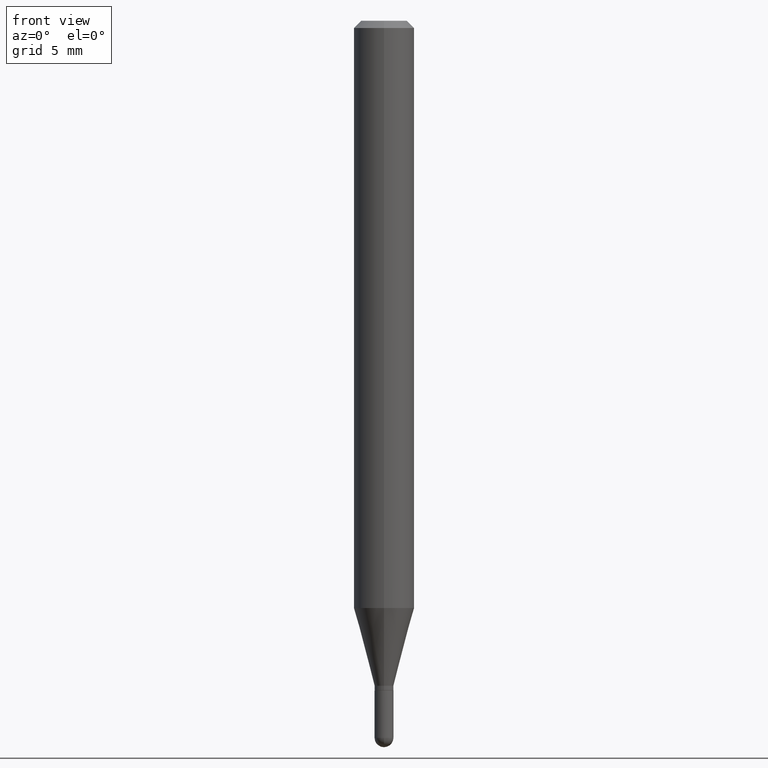
[diagram: clean part render]
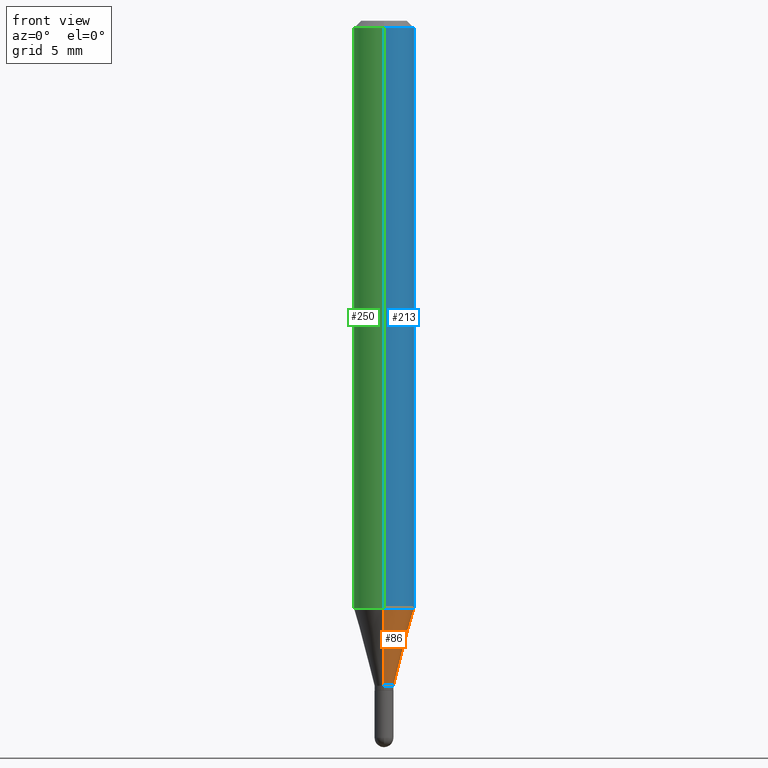
[diagram: same view with three faces highlighted in distinct colors, each labeled with its STEP entity id]
A machine part, front view with three faces highlighted in distinct colors.
Their STEP definitions:

[orange] entity #86 — the highlighted conical surface has half-angle 15 deg.
#3 = DIRECTION ( 'NONE',  ( 1.839019923739599526E-15, 0.2588190451025248473, 0.9659258262890670910 ) ) ;
#6 = AXIS2_PLACEMENT_3D ( 'NONE', #460, #298, #258 ) ;
#10 = EDGE_CURVE ( 'NONE', #42, #93, #144, .T. ) ;
#23 = CARTESIAN_POINT ( 'NONE',  ( -1.361677722148480659E-16, -0.01950000000000471495, -1.372999999999999998 ) ) ;
#42 = VERTEX_POINT ( 'NONE', #428 ) ;
#47 = AXIS2_PLACEMENT_3D ( 'NONE', #102, #222, #216 ) ;
#66 = CARTESIAN_POINT ( 'NONE',  ( 4.440892098500920012E-16, 0.06249999999999574646, -1.212521815274538728 ) ) ;
#78 = EDGE_CURVE ( 'NONE', #93, #196, #496, .T. ) ;
#84 = LINE ( 'NONE', #159, #247 ) ;
#85 = VERTEX_POINT ( 'NONE', #294 ) ;
#86 = ADVANCED_FACE ( 'NONE', ( #107 ), #246, .T. ) ;
#93 = VERTEX_POINT ( 'NONE', #461 ) ;
#102 = CARTESIAN_POINT ( 'NONE',  ( 3.357631593102754865E-29, -4.793799693459790864E-15, -1.372999999999999998 ) ) ;
#107 = FACE_OUTER_BOUND ( 'NONE', #370, .T. ) ;
#144 = LINE ( 'NONE', #23, #454 ) ;
#159 = CARTESIAN_POINT ( 'NONE',  ( 1.385558334732525203E-16, 0.01949999999999512887, -1.372999999999999998 ) ) ;
#179 = AXIS2_PLACEMENT_3D ( 'NONE', #463, #352, #385 ) ;
#192 = CIRCLE ( 'NONE', #179, 0.01949999999999992017 ) ;
#196 = VERTEX_POINT ( 'NONE', #66 ) ;
#216 = DIRECTION ( 'NONE',  ( -6.982962677686266711E-15, -1.000000000000000000, 0.000000000000000000 ) ) ;
#222 = DIRECTION ( 'NONE',  ( -2.445470934524949177E-29, 3.491478290939396470E-15, 1.000000000000000000 ) ) ;
#238 = ORIENTED_EDGE ( 'NONE', *, *, #10, .F. ) ;
#246 = CONICAL_SURFACE ( 'NONE', #47, 0.01949999999999992017, 0.2617993877991501850 ) ;
#247 = VECTOR ( 'NONE', #3, 39.37007874015748143 ) ;
#258 = DIRECTION ( 'NONE',  ( -6.982962677686265922E-15, -1.000000000000000000, 4.370956789862821150E-15 ) ) ;
#294 = CARTESIAN_POINT ( 'NONE',  ( 2.913225216616725443E-16, 0.01949999999999512887, -1.372999999999999998 ) ) ;
#298 = DIRECTION ( 'NONE',  ( -2.445470934524949177E-29, 3.491478290939396470E-15, 1.000000000000000000 ) ) ;
#323 = ORIENTED_EDGE ( 'NONE', *, *, #78, .F. ) ;
#352 = DIRECTION ( 'NONE',  ( -2.445470934524949177E-29, 3.491478290939396470E-15, 1.000000000000000000 ) ) ;
#370 = EDGE_LOOP ( 'NONE', ( #457, #392, #323, #238 ) ) ;
#385 = DIRECTION ( 'NONE',  ( -6.982962677686266711E-15, -1.000000000000000000, 0.000000000000000000 ) ) ;
#392 = ORIENTED_EDGE ( 'NONE', *, *, #439, .T. ) ;
#425 = DIRECTION ( 'NONE',  ( -1.807323732225329350E-15, -0.2588190451025180194, 0.9659258262890689783 ) ) ;
#428 = CARTESIAN_POINT ( 'NONE',  ( -1.361677722148480659E-16, -0.01950000000000471495, -1.372999999999999998 ) ) ;
#439 = EDGE_CURVE ( 'NONE', #85, #196, #84, .T. ) ;
#454 = VECTOR ( 'NONE', #425, 39.37007874015749564 ) ;
#457 = ORIENTED_EDGE ( 'NONE', *, *, #509, .T. ) ;
#460 = CARTESIAN_POINT ( 'NONE',  ( 2.965186856731312927E-29, -4.233493595321480770E-15, -1.212521815274538506 ) ) ;
#461 = CARTESIAN_POINT ( 'NONE',  ( -4.364351673553621364E-16, -0.06250000000000424660, -1.212521815274538284 ) ) ;
#463 = CARTESIAN_POINT ( 'NONE',  ( 3.357631593102754865E-29, -4.793799693459790864E-15, -1.372999999999999998 ) ) ;
#496 = CIRCLE ( 'NONE', #6, 0.06250000000000000000 ) ;
#509 = EDGE_CURVE ( 'NONE', #42, #85, #192, .T. ) ;

[blue] entity #213 — the highlighted cylindrical surface (edge-blend (fillet) strip) has radius 1.5875 mm, axis along (-0, 0, 1).
#6 = AXIS2_PLACEMENT_3D ( 'NONE', #460, #298, #258 ) ;
#57 = CIRCLE ( 'NONE', #303, 0.06250000000000000000 ) ;
#66 = CARTESIAN_POINT ( 'NONE',  ( 4.440892098500920012E-16, 0.06249999999999574646, -1.212521815274538728 ) ) ;
#78 = EDGE_CURVE ( 'NONE', #93, #196, #496, .T. ) ;
#79 = CARTESIAN_POINT ( 'NONE',  ( -4.364351673553912750E-16, -0.06250000000000005551, -0.01499999999999979128 ) ) ;
#81 = VECTOR ( 'NONE', #406, 39.37007874015748143 ) ;
#83 = ORIENTED_EDGE ( 'NONE', *, *, #190, .T. ) ;
#93 = VERTEX_POINT ( 'NONE', #461 ) ;
#154 = DIRECTION ( 'NONE',  ( -6.982962677686265922E-15, -1.000000000000000000, 3.483106191921935554E-15 ) ) ;
#156 = LINE ( 'NONE', #405, #486 ) ;
#161 = CARTESIAN_POINT ( 'NONE',  ( 4.440892098500923957E-16, 0.06249999999999995143, -0.01500000000000022669 ) ) ;
#183 = CARTESIAN_POINT ( 'NONE',  ( 3.668206401787426008E-31, -5.237217436409098206E-17, -0.01500000000000000812 ) ) ;
#190 = EDGE_CURVE ( 'NONE', #196, #483, #156, .T. ) ;
#196 = VERTEX_POINT ( 'NONE', #66 ) ;
#204 = EDGE_LOOP ( 'NONE', ( #373, #83, #410, #240 ) ) ;
#213 = ADVANCED_FACE ( 'NONE', ( #308 ), #311, .T. ) ;
#240 = ORIENTED_EDGE ( 'NONE', *, *, #397, .F. ) ;
#258 = DIRECTION ( 'NONE',  ( -6.982962677686265922E-15, -1.000000000000000000, 4.370956789862821150E-15 ) ) ;
#266 = EDGE_CURVE ( 'NONE', #491, #483, #57, .T. ) ;
#273 = DIRECTION ( 'NONE',  ( -2.445470934524948897E-29, 3.491478290939396076E-15, 1.000000000000000000 ) ) ;
#285 = CARTESIAN_POINT ( 'NONE',  ( -4.364351673553916201E-16, -0.06250000000000000000, 2.182173931837122794E-16 ) ) ;
#298 = DIRECTION ( 'NONE',  ( -2.445470934524949177E-29, 3.491478290939396470E-15, 1.000000000000000000 ) ) ;
#303 = AXIS2_PLACEMENT_3D ( 'NONE', #183, #304, #154 ) ;
#304 = DIRECTION ( 'NONE',  ( -2.445470934524949177E-29, 3.491478290939396470E-15, 1.000000000000000000 ) ) ;
#308 = FACE_OUTER_BOUND ( 'NONE', #204, .T. ) ;
#311 = CYLINDRICAL_SURFACE ( 'NONE', #426, 0.06250000000000000000 ) ;
#350 = DIRECTION ( 'NONE',  ( -6.982962677686265922E-15, -1.000000000000000000, 3.491478290939396470E-15 ) ) ;
#373 = ORIENTED_EDGE ( 'NONE', *, *, #78, .T. ) ;
#397 = EDGE_CURVE ( 'NONE', #93, #491, #476, .T. ) ;
#405 = CARTESIAN_POINT ( 'NONE',  ( 4.440892098500625669E-16, 0.06250000000000000000, -2.182173931837122794E-16 ) ) ;
#406 = DIRECTION ( 'NONE',  ( -2.445470934524948897E-29, 3.491478290939396076E-15, 1.000000000000000000 ) ) ;
#410 = ORIENTED_EDGE ( 'NONE', *, *, #266, .F. ) ;
#426 = AXIS2_PLACEMENT_3D ( 'NONE', #470, #474, #350 ) ;
#460 = CARTESIAN_POINT ( 'NONE',  ( 2.965186856731312927E-29, -4.233493595321480770E-15, -1.212521815274538506 ) ) ;
#461 = CARTESIAN_POINT ( 'NONE',  ( -4.364351673553621364E-16, -0.06250000000000424660, -1.212521815274538284 ) ) ;
#470 = CARTESIAN_POINT ( 'NONE',  ( 0.000000000000000000, 0.000000000000000000, 0.000000000000000000 ) ) ;
#474 = DIRECTION ( 'NONE',  ( -2.445470934524949177E-29, 3.491478290939396470E-15, 1.000000000000000000 ) ) ;
#476 = LINE ( 'NONE', #285, #81 ) ;
#483 = VERTEX_POINT ( 'NONE', #161 ) ;
#486 = VECTOR ( 'NONE', #273, 39.37007874015748143 ) ;
#491 = VERTEX_POINT ( 'NONE', #79 ) ;
#496 = CIRCLE ( 'NONE', #6, 0.06250000000000000000 ) ;

[green] entity #250 — the highlighted cylindrical surface (edge-blend (fillet) strip) has radius 1.5875 mm, axis along (-0, 0, 1).
#2 = ORIENTED_EDGE ( 'NONE', *, *, #397, .T. ) ;
#30 = CARTESIAN_POINT ( 'NONE',  ( 3.668206401787426008E-31, -5.237217436409098206E-17, -0.01500000000000000812 ) ) ;
#34 = CARTESIAN_POINT ( 'NONE',  ( 0.000000000000000000, 0.000000000000000000, 0.000000000000000000 ) ) ;
#36 = EDGE_CURVE ( 'NONE', #483, #491, #302, .T. ) ;
#66 = CARTESIAN_POINT ( 'NONE',  ( 4.440892098500920012E-16, 0.06249999999999574646, -1.212521815274538728 ) ) ;
#79 = CARTESIAN_POINT ( 'NONE',  ( -4.364351673553912750E-16, -0.06250000000000005551, -0.01499999999999979128 ) ) ;
#81 = VECTOR ( 'NONE', #406, 39.37007874015748143 ) ;
#93 = VERTEX_POINT ( 'NONE', #461 ) ;
#97 = DIRECTION ( 'NONE',  ( -2.445470934524949177E-29, 3.491478290939396470E-15, 1.000000000000000000 ) ) ;
#99 = DIRECTION ( 'NONE',  ( -2.445470934524949177E-29, 3.491478290939396470E-15, 1.000000000000000000 ) ) ;
#156 = LINE ( 'NONE', #405, #486 ) ;
#161 = CARTESIAN_POINT ( 'NONE',  ( 4.440892098500923957E-16, 0.06249999999999995143, -0.01500000000000022669 ) ) ;
#189 = DIRECTION ( 'NONE',  ( -2.445470934524949177E-29, 3.491478290939396470E-15, 1.000000000000000000 ) ) ;
#190 = EDGE_CURVE ( 'NONE', #196, #483, #156, .T. ) ;
#196 = VERTEX_POINT ( 'NONE', #66 ) ;
#231 = CIRCLE ( 'NONE', #365, 0.06250000000000000000 ) ;
#235 = CARTESIAN_POINT ( 'NONE',  ( 2.965186856731312927E-29, -4.233493595321480770E-15, -1.212521815274538506 ) ) ;
#243 = ORIENTED_EDGE ( 'NONE', *, *, #500, .T. ) ;
#250 = ADVANCED_FACE ( 'NONE', ( #508 ), #398, .T. ) ;
#264 = AXIS2_PLACEMENT_3D ( 'NONE', #34, #189, #471 ) ;
#273 = DIRECTION ( 'NONE',  ( -2.445470934524948897E-29, 3.491478290939396076E-15, 1.000000000000000000 ) ) ;
#284 = EDGE_LOOP ( 'NONE', ( #450, #243, #2, #305 ) ) ;
#285 = CARTESIAN_POINT ( 'NONE',  ( -4.364351673553916201E-16, -0.06250000000000000000, 2.182173931837122794E-16 ) ) ;
#293 = DIRECTION ( 'NONE',  ( -6.982962677686265922E-15, -1.000000000000000000, 3.483106191921935554E-15 ) ) ;
#302 = CIRCLE ( 'NONE', #377, 0.06250000000000000000 ) ;
#305 = ORIENTED_EDGE ( 'NONE', *, *, #36, .F. ) ;
#365 = AXIS2_PLACEMENT_3D ( 'NONE', #235, #99, #458 ) ;
#377 = AXIS2_PLACEMENT_3D ( 'NONE', #30, #97, #293 ) ;
#397 = EDGE_CURVE ( 'NONE', #93, #491, #476, .T. ) ;
#398 = CYLINDRICAL_SURFACE ( 'NONE', #264, 0.06250000000000000000 ) ;
#405 = CARTESIAN_POINT ( 'NONE',  ( 4.440892098500625669E-16, 0.06250000000000000000, -2.182173931837122794E-16 ) ) ;
#406 = DIRECTION ( 'NONE',  ( -2.445470934524948897E-29, 3.491478290939396076E-15, 1.000000000000000000 ) ) ;
#450 = ORIENTED_EDGE ( 'NONE', *, *, #190, .F. ) ;
#458 = DIRECTION ( 'NONE',  ( -6.982962677686265922E-15, -1.000000000000000000, 4.370956789862821150E-15 ) ) ;
#461 = CARTESIAN_POINT ( 'NONE',  ( -4.364351673553621364E-16, -0.06250000000000424660, -1.212521815274538284 ) ) ;
#471 = DIRECTION ( 'NONE',  ( -6.982962677686265922E-15, -1.000000000000000000, 3.491478290939396470E-15 ) ) ;
#476 = LINE ( 'NONE', #285, #81 ) ;
#483 = VERTEX_POINT ( 'NONE', #161 ) ;
#486 = VECTOR ( 'NONE', #273, 39.37007874015748143 ) ;
#491 = VERTEX_POINT ( 'NONE', #79 ) ;
#500 = EDGE_CURVE ( 'NONE', #196, #93, #231, .T. ) ;
#508 = FACE_OUTER_BOUND ( 'NONE', #284, .T. ) ;